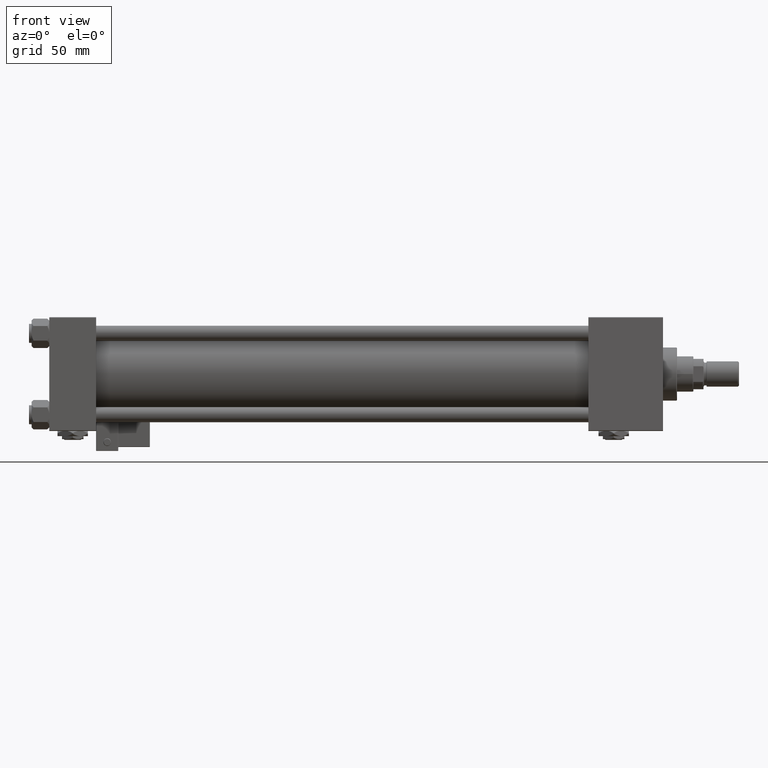
[diagram: clean part render]
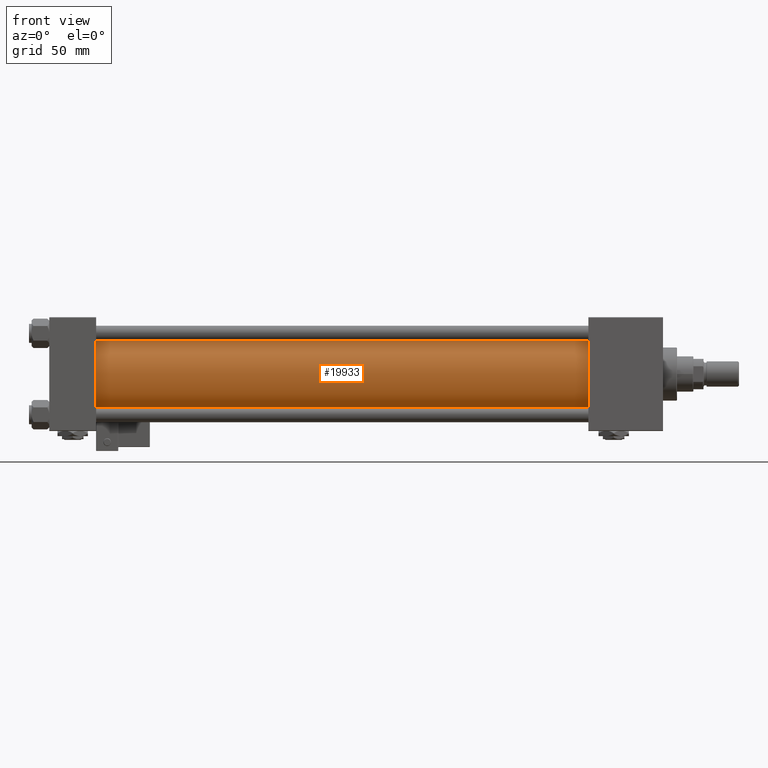
[diagram: same view with one face highlighted and labeled with its STEP entity id]
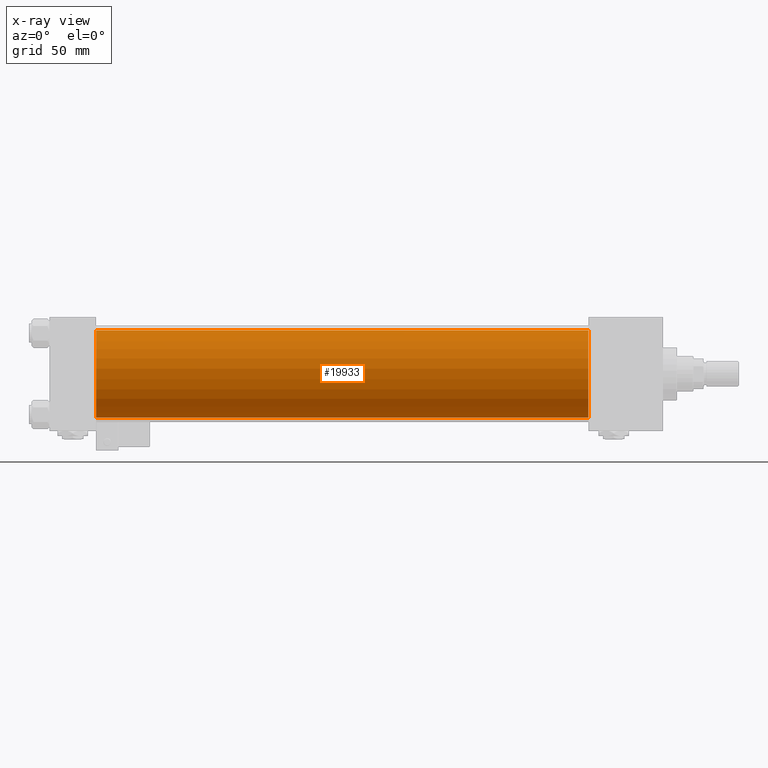
[diagram: x-ray of the same camera — body ghosted, the highlighted face saturated]
A machine part, front view. The second image highlights one B-rep face of the part: STEP entity #19933.
The next image is the same camera in x-ray: the body ghosted, the highlighted face saturated — about 0% of this face is hidden behind the body in this view.
In plain terms, the highlighted cylindrical surface (partial cylindrical patch) has radius 34.5 mm, axis along (-1, -0, -0).
Its self-contained STEP definition (entity closure, byte-faithful):
#2186 = EDGE_CURVE ( 'NONE', #35861, #18250, #40180, .T. ) ;
#2216 = DIRECTION ( 'NONE',  ( 0.000000000000000000, 0.000000000000000000, -1.000000000000000000 ) ) ;
#2643 = VERTEX_POINT ( 'NONE', #20477 ) ;
#2785 = CARTESIAN_POINT ( 'NONE',  ( 36.99999999999997868, -2.602085213965210642E-15, 0.000000000000000000 ) ) ;
#6676 = DIRECTION ( 'NONE',  ( 1.000000000000000000, -0.000000000000000000, 0.000000000000000000 ) ) ;
#7986 = VECTOR ( 'NONE', #47701, 1000.000000000000000 ) ;
#8365 = CARTESIAN_POINT ( 'NONE',  ( 426.0000000000000000, -2.602085213965210642E-15, 34.50000000000000000 ) ) ;
#9894 = DIRECTION ( 'NONE',  ( 0.000000000000000000, 0.000000000000000000, 1.000000000000000000 ) ) ;
#10147 = EDGE_CURVE ( 'NONE', #32485, #2643, #32473, .T. ) ;
#10345 = EDGE_LOOP ( 'NONE', ( #15429, #33158, #51859, #13756 ) ) ;
#13756 = ORIENTED_EDGE ( 'NONE', *, *, #2186, .T. ) ;
#15429 = ORIENTED_EDGE ( 'NONE', *, *, #36413, .F. ) ;
#15616 = CARTESIAN_POINT ( 'NONE',  ( 36.99999999999997868, -2.602085213965210642E-15, 34.50000000000000000 ) ) ;
#17471 = CARTESIAN_POINT ( 'NONE',  ( 36.99999999999997868, 1.622946243093158675E-15, -34.50000000000000000 ) ) ;
#17659 = CARTESIAN_POINT ( 'NONE',  ( 426.0000000000000000, 1.622946243093158675E-15, -34.50000000000000000 ) ) ;
#18213 = CARTESIAN_POINT ( 'NONE',  ( 426.0000000000000000, -2.602085213965210642E-15, 0.000000000000000000 ) ) ;
#18250 = VERTEX_POINT ( 'NONE', #17471 ) ;
#19933 = ADVANCED_FACE ( 'NONE', ( #30703 ), #47381, .T. ) ;
#20477 = CARTESIAN_POINT ( 'NONE',  ( 426.0000000000000000, 1.622946243093158675E-15, -34.50000000000000000 ) ) ;
#26215 = VECTOR ( 'NONE', #29889, 1000.000000000000000 ) ;
#26288 = AXIS2_PLACEMENT_3D ( 'NONE', #52751, #36351, #2216 ) ;
#29889 = DIRECTION ( 'NONE',  ( -1.000000000000000000, -0.000000000000000000, -0.000000000000000000 ) ) ;
#30703 = FACE_OUTER_BOUND ( 'NONE', #10345, .T. ) ;
#32473 = CIRCLE ( 'NONE', #26288, 34.50000000000000000 ) ;
#32485 = VERTEX_POINT ( 'NONE', #8365 ) ;
#33158 = ORIENTED_EDGE ( 'NONE', *, *, #10147, .F. ) ;
#35825 = DIRECTION ( 'NONE',  ( 0.000000000000000000, 0.000000000000000000, 1.000000000000000000 ) ) ;
#35861 = VERTEX_POINT ( 'NONE', #15616 ) ;
#36351 = DIRECTION ( 'NONE',  ( 1.000000000000000000, 0.000000000000000000, 0.000000000000000000 ) ) ;
#36413 = EDGE_CURVE ( 'NONE', #2643, #18250, #42936, .T. ) ;
#40180 = CIRCLE ( 'NONE', #42822, 34.50000000000000000 ) ;
#41638 = AXIS2_PLACEMENT_3D ( 'NONE', #18213, #51269, #9894 ) ;
#42822 = AXIS2_PLACEMENT_3D ( 'NONE', #2785, #6676, #35825 ) ;
#42936 = LINE ( 'NONE', #17659, #26215 ) ;
#47381 = CYLINDRICAL_SURFACE ( 'NONE', #41638, 34.50000000000000000 ) ;
#47701 = DIRECTION ( 'NONE',  ( -1.000000000000000000, -0.000000000000000000, -0.000000000000000000 ) ) ;
#48532 = CARTESIAN_POINT ( 'NONE',  ( 426.0000000000000000, -2.602085213965210642E-15, 34.50000000000000000 ) ) ;
#51269 = DIRECTION ( 'NONE',  ( -1.000000000000000000, -0.000000000000000000, -0.000000000000000000 ) ) ;
#51858 = LINE ( 'NONE', #48532, #7986 ) ;
#51859 = ORIENTED_EDGE ( 'NONE', *, *, #54826, .T. ) ;
#52751 = CARTESIAN_POINT ( 'NONE',  ( 426.0000000000000000, -2.602085213965210642E-15, 0.000000000000000000 ) ) ;
#54826 = EDGE_CURVE ( 'NONE', #32485, #35861, #51858, .T. ) ;